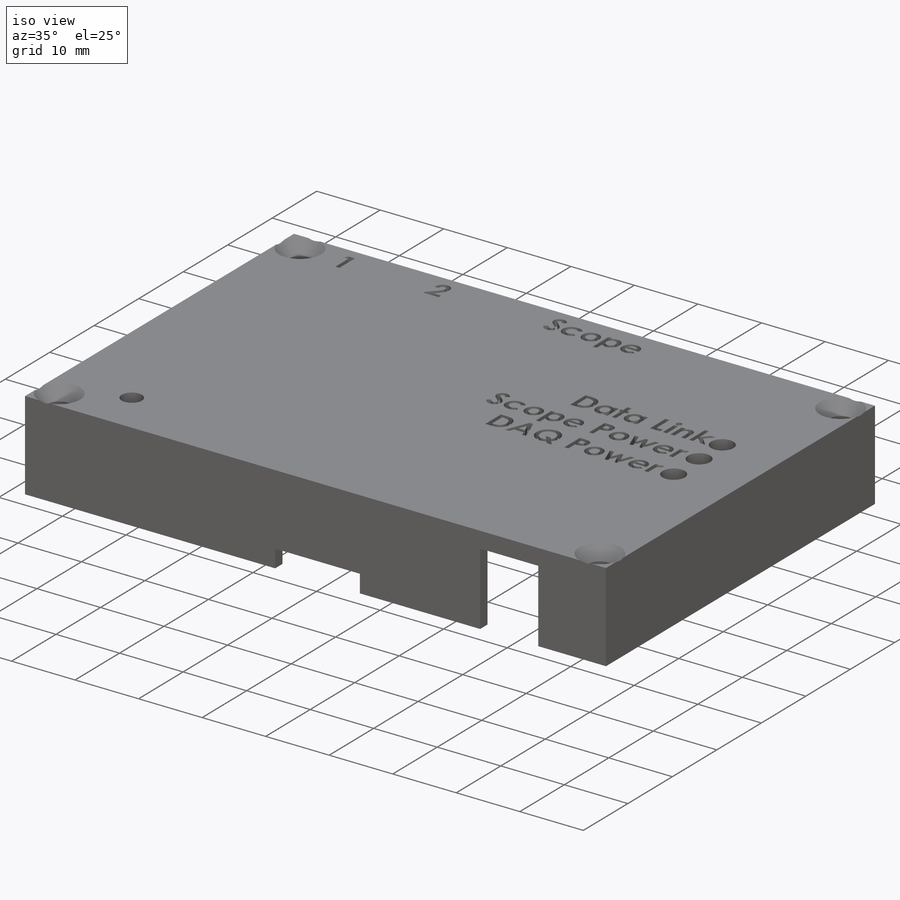
[diagram: iso view]
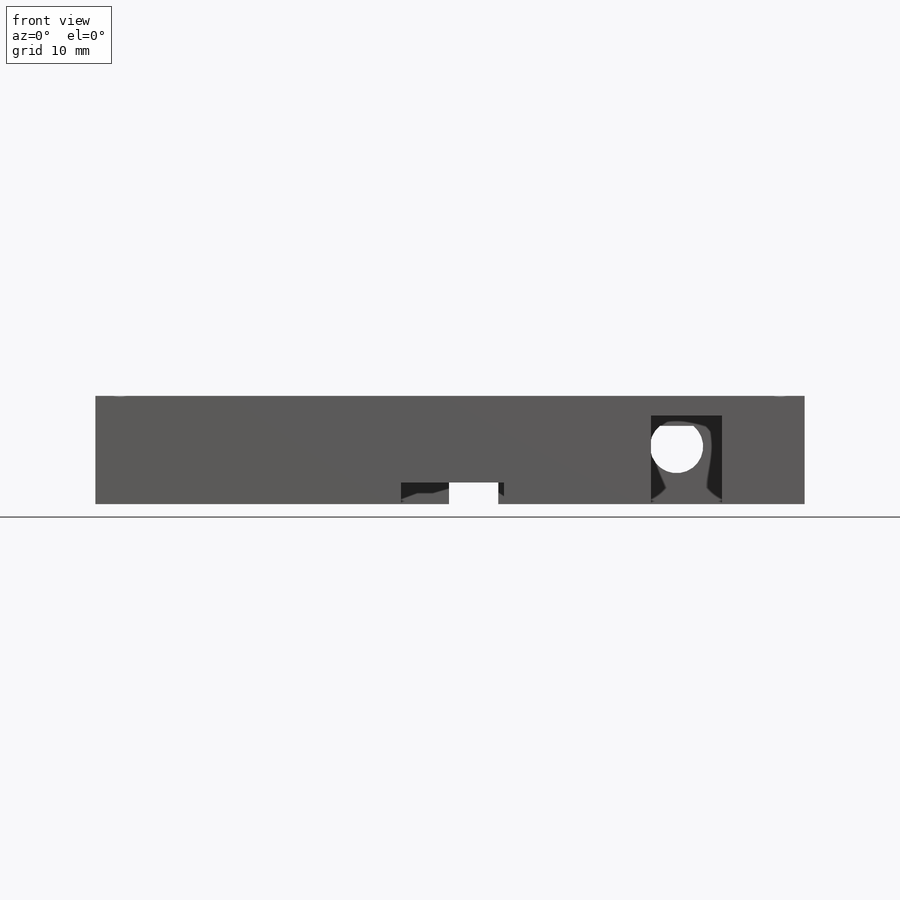
[diagram: front view]
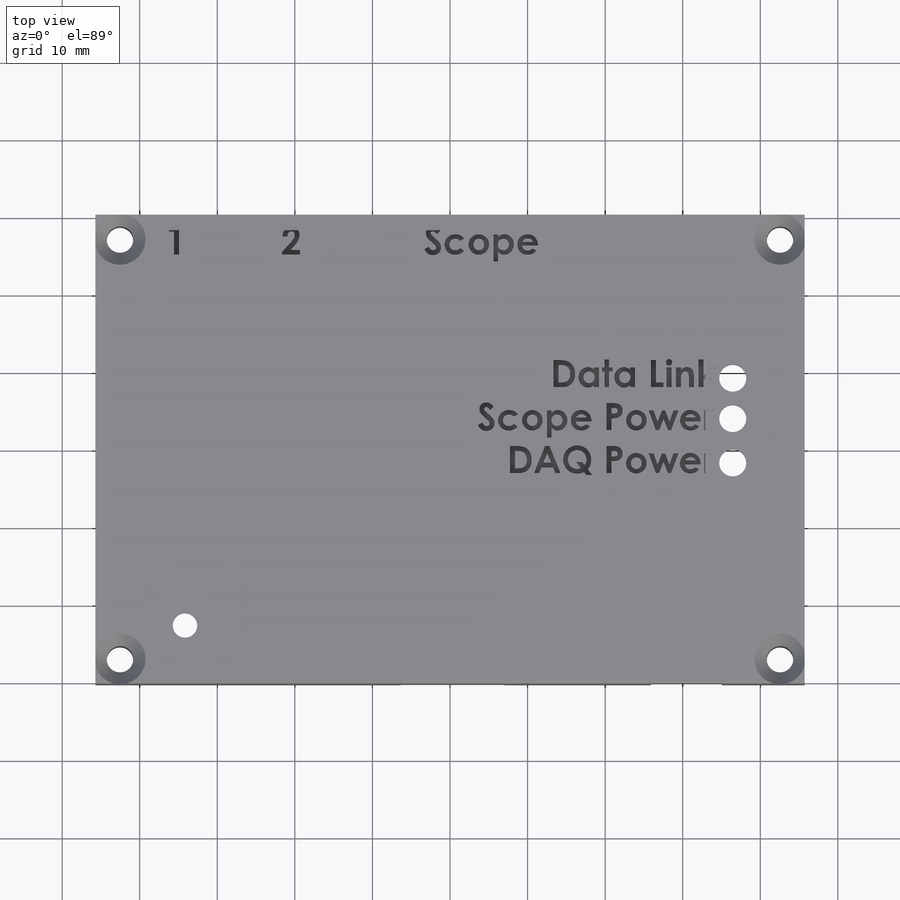
[diagram: top view]
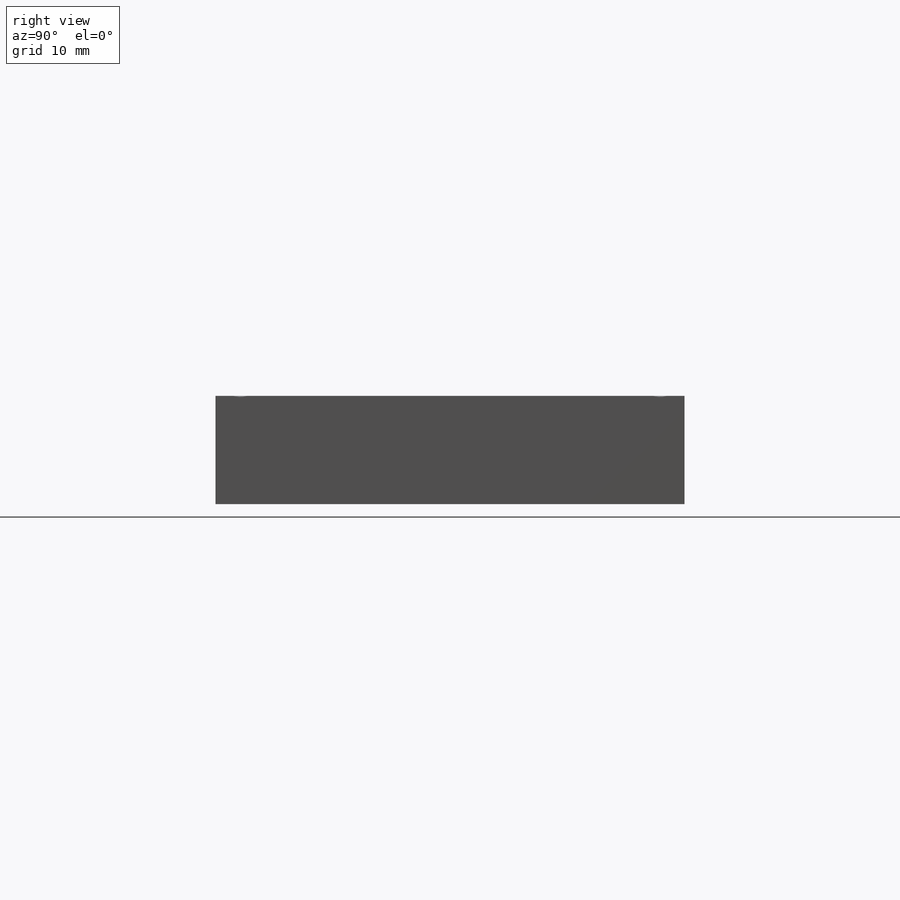
[diagram: right view]
SOLIDWORKS PART (.sldprt)
format: sldprt  version: not decoded by parser v0  size: 1,256,960 bytes
history: native  units: mm
features: sketch x8, cut_extrude x7, material x1, extrude x1, chamfer x1, fillet x1 (+11 scaffold rows collapsed)
feature tree (30):
  scaffold x11  (default folders/planes/origin — collapsed)
  material  "Material <not specified>"
  sketch  "Sketch1"  dims[D1=60.452mm D2=91.44mm]
  extrude  "Boss-Extrude1"  Depth=13.97mm
  sketch  "Sketch2"  dims[D1=1.651mm D2=57.15mm D3=78.74mm D4=6.35mm]
  cut_extrude  "Cut-Extrude1"  Depth=2.54mm
  sketch  "Sketch3"  dims[c1.D1=3.429mm c1.D5=~3.140301mm c1.D6=3.175mm c1.D2=3.175mm c1.D3=3.175mm c1.D4=6.731mm c2.D5=11.557mm c2.D4=5.842mm]
  cut_extrude  "Cut-Extrude2"  [1 undecoded]
  chamfer  "Chamfer1"  Distance=1.905mm
  sketch  "Sketch4"  dims[D1=13.335mm D2=2.794mm D3=52.07mm D4=76.2mm D5=11.43mm D6=9.144mm]
  cut_extrude  "Cut-Extrude3"  [1 undecoded]
  sketch  "Sketch5"  dims[D1=6.35mm D9=6.858mm D2=1.4478mm D3=3.9116mm D4=6.604mm D5=10.541mm D6=25.4mm D7=50.419mm D8=48.768mm D10=2.667mm D11=16.51mm D12=6.5405mm]
  cut_extrude  "Cut-Extrude4"  [1 undecoded]
  fillet  "Fillet1"  Radius=1.5875mm
  sketch  "Sketch6"  dims[c1.D1=76.2mm c1.D2=33.02mm c1.D3=48.26mm c2.D2=82.169mm c2.D3=26.797mm c2.D4=5.715mm c2.D5=5.207mm]
  cut_extrude  "Cut-Extrude5"  [1 undecoded]
  sketch  "Sketch7"  dims[D1=~9.483664mm]
  cut_extrude  "Cut-Extrude6"  Depth=1mm
  sketch  "Sketch8"
  cut_extrude  "Cut-Extrude7"  Depth=1mm
decode coverage: 13 of 18 modeling features carry decoded parameters
note: ~ marks probable driven/reference dimensions
note: 4 parameter values undecoded
summary: no parameter record found for 4 features
note: suppression state not decoded; provenance and decode notes live in map.json
